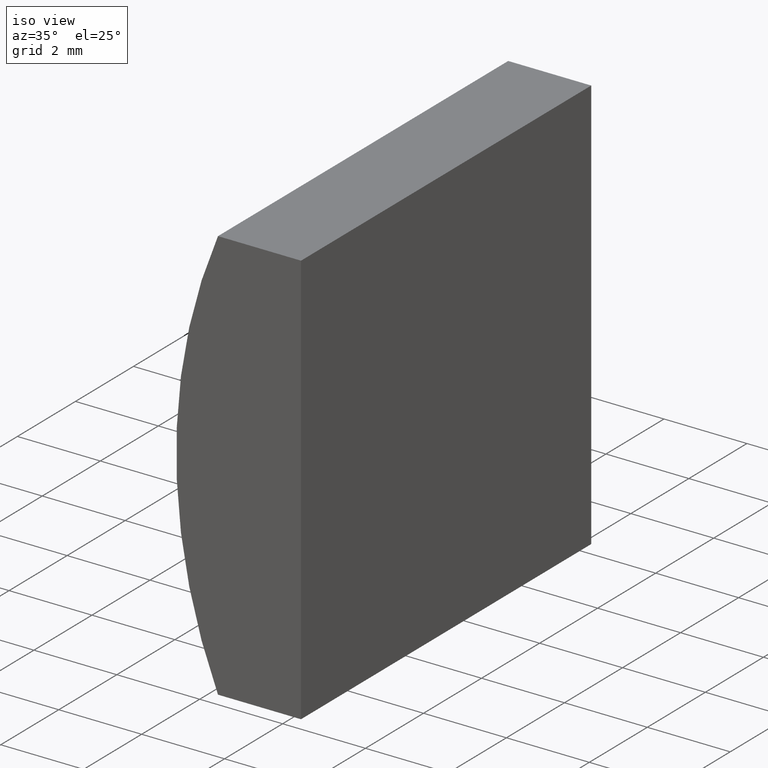
[diagram: clean part render]
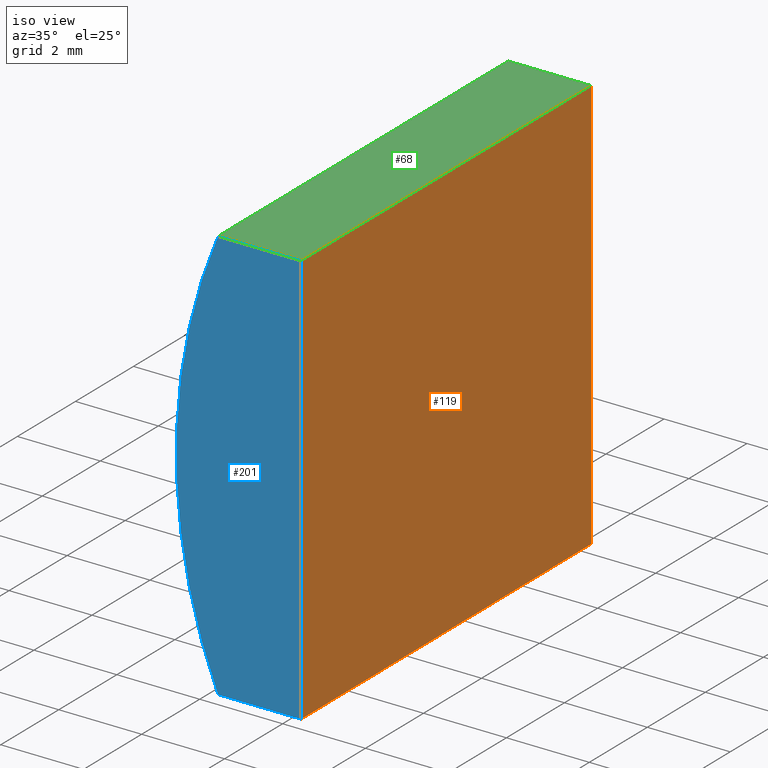
[diagram: same view with three faces highlighted in distinct colors, each labeled with its STEP entity id]
A machine part, iso view with three faces highlighted in distinct colors.
Their STEP definitions:

[orange] entity #119 — the highlighted planar face has unit normal (-1, 0, 0).
#5 = DIRECTION ( 'NONE',  ( 3.469446951953614200E-016, 0.0000000000000000000, 1.000000000000000000 ) ) ;
#6 = PLANE ( 'NONE',  #48 ) ;
#7 = VECTOR ( 'NONE', #132, 1000.000000000000000 ) ;
#13 = LINE ( 'NONE', #19, #125 ) ;
#19 = CARTESIAN_POINT ( 'NONE',  ( -5.554795665148737300, 10.00000000000000000, -5.000000000000000000 ) ) ;
#20 = CARTESIAN_POINT ( 'NONE',  ( -5.554795665148733800, 10.00000000000000000, 5.000000000000000000 ) ) ;
#30 = EDGE_CURVE ( 'NONE', #172, #111, #39, .T. ) ;
#33 = CARTESIAN_POINT ( 'NONE',  ( -5.554795665148733800, 10.00000000000000000, 5.000000000000000000 ) ) ;
#39 = LINE ( 'NONE', #126, #49 ) ;
#47 = CARTESIAN_POINT ( 'NONE',  ( -5.554795665148733800, 0.0000000000000000000, 5.000000000000000000 ) ) ;
#48 = AXIS2_PLACEMENT_3D ( 'NONE', #60, #110, #5 ) ;
#49 = VECTOR ( 'NONE', #175, 1000.000000000000000 ) ;
#60 = CARTESIAN_POINT ( 'NONE',  ( -5.554795665148737300, 10.00000000000000000, -5.000000000000000000 ) ) ;
#62 = VERTEX_POINT ( 'NONE', #20 ) ;
#63 = FACE_OUTER_BOUND ( 'NONE', #156, .T. ) ;
#66 = EDGE_CURVE ( 'NONE', #62, #172, #13, .T. ) ;
#70 = CARTESIAN_POINT ( 'NONE',  ( -5.554795665148737300, 0.0000000000000000000, -5.000000000000000000 ) ) ;
#74 = ORIENTED_EDGE ( 'NONE', *, *, #76, .T. ) ;
#75 = CARTESIAN_POINT ( 'NONE',  ( -5.554795665148737300, 0.0000000000000000000, -5.000000000000000000 ) ) ;
#76 = EDGE_CURVE ( 'NONE', #62, #108, #160, .T. ) ;
#82 = LINE ( 'NONE', #70, #86 ) ;
#86 = VECTOR ( 'NONE', #89, 1000.000000000000000 ) ;
#89 = DIRECTION ( 'NONE',  ( -3.469446951953614200E-016, -0.0000000000000000000, -1.000000000000000000 ) ) ;
#108 = VERTEX_POINT ( 'NONE', #47 ) ;
#110 = DIRECTION ( 'NONE',  ( -1.000000000000000000, 0.0000000000000000000, 3.469446951953614200E-016 ) ) ;
#111 = VERTEX_POINT ( 'NONE', #75 ) ;
#118 = ORIENTED_EDGE ( 'NONE', *, *, #153, .T. ) ;
#119 = ADVANCED_FACE ( 'NONE', ( #63 ), #6, .F. ) ;
#123 = ORIENTED_EDGE ( 'NONE', *, *, #30, .F. ) ;
#125 = VECTOR ( 'NONE', #131, 1000.000000000000000 ) ;
#126 = CARTESIAN_POINT ( 'NONE',  ( -5.554795665148737300, 10.00000000000000000, -5.000000000000000000 ) ) ;
#131 = DIRECTION ( 'NONE',  ( -3.469446951953614200E-016, -0.0000000000000000000, -1.000000000000000000 ) ) ;
#132 = DIRECTION ( 'NONE',  ( -0.0000000000000000000, -1.000000000000000000, -0.0000000000000000000 ) ) ;
#153 = EDGE_CURVE ( 'NONE', #108, #111, #82, .T. ) ;
#156 = EDGE_LOOP ( 'NONE', ( #118, #123, #168, #74 ) ) ;
#160 = LINE ( 'NONE', #33, #7 ) ;
#168 = ORIENTED_EDGE ( 'NONE', *, *, #66, .F. ) ;
#172 = VERTEX_POINT ( 'NONE', #177 ) ;
#175 = DIRECTION ( 'NONE',  ( -0.0000000000000000000, -1.000000000000000000, -0.0000000000000000000 ) ) ;
#177 = CARTESIAN_POINT ( 'NONE',  ( -5.554795665148737300, 10.00000000000000000, -5.000000000000000000 ) ) ;

[blue] entity #201 — the highlighted planar face has unit normal (0, 1, 0).
#1 = VECTOR ( 'NONE', #113, 1000.000000000000000 ) ;
#8 = CARTESIAN_POINT ( 'NONE',  ( -7.558082365299958900, 0.0000000000000000000, 5.000000000000000000 ) ) ;
#12 = DIRECTION ( 'NONE',  ( 0.0000000000000000000, 1.000000000000000000, 0.0000000000000000000 ) ) ;
#22 = CARTESIAN_POINT ( 'NONE',  ( -7.558082365299958900, 0.0000000000000000000, -5.000000000000000000 ) ) ;
#43 = VERTEX_POINT ( 'NONE', #8 ) ;
#47 = CARTESIAN_POINT ( 'NONE',  ( -5.554795665148733800, 0.0000000000000000000, 5.000000000000000000 ) ) ;
#53 = LINE ( 'NONE', #95, #186 ) ;
#64 = DIRECTION ( 'NONE',  ( -1.000000000000000000, -0.0000000000000000000, -0.0000000000000000000 ) ) ;
#65 = EDGE_CURVE ( 'NONE', #43, #108, #72, .T. ) ;
#70 = CARTESIAN_POINT ( 'NONE',  ( -5.554795665148737300, 0.0000000000000000000, -5.000000000000000000 ) ) ;
#72 = LINE ( 'NONE', #142, #1 ) ;
#75 = CARTESIAN_POINT ( 'NONE',  ( -5.554795665148737300, 0.0000000000000000000, -5.000000000000000000 ) ) ;
#78 = ORIENTED_EDGE ( 'NONE', *, *, #65, .F. ) ;
#79 = CIRCLE ( 'NONE', #149, 12.92000000000000300 ) ;
#82 = LINE ( 'NONE', #70, #86 ) ;
#83 = AXIS2_PLACEMENT_3D ( 'NONE', #92, #12, #182 ) ;
#84 = ORIENTED_EDGE ( 'NONE', *, *, #188, .F. ) ;
#86 = VECTOR ( 'NONE', #89, 1000.000000000000000 ) ;
#89 = DIRECTION ( 'NONE',  ( -3.469446951953614200E-016, -0.0000000000000000000, -1.000000000000000000 ) ) ;
#91 = FACE_OUTER_BOUND ( 'NONE', #197, .T. ) ;
#92 = CARTESIAN_POINT ( 'NONE',  ( 4.355204334851265500, 0.0000000000000000000, 4.286263797015675000E-017 ) ) ;
#95 = CARTESIAN_POINT ( 'NONE',  ( -7.558082365299958900, 0.0000000000000000000, -5.000000000000000000 ) ) ;
#96 = DIRECTION ( 'NONE',  ( 0.0000000000000000000, 0.0000000000000000000, 1.000000000000000000 ) ) ;
#101 = EDGE_CURVE ( 'NONE', #111, #157, #53, .T. ) ;
#107 = CARTESIAN_POINT ( 'NONE',  ( 4.355204334851265500, 0.0000000000000000000, 4.286263797015675000E-017 ) ) ;
#108 = VERTEX_POINT ( 'NONE', #47 ) ;
#111 = VERTEX_POINT ( 'NONE', #75 ) ;
#113 = DIRECTION ( 'NONE',  ( 1.000000000000000000, 0.0000000000000000000, 0.0000000000000000000 ) ) ;
#115 = DIRECTION ( 'NONE',  ( 0.0000000000000000000, 1.000000000000000000, 0.0000000000000000000 ) ) ;
#128 = PLANE ( 'NONE',  #83 ) ;
#142 = CARTESIAN_POINT ( 'NONE',  ( -7.558082365299958900, 0.0000000000000000000, 5.000000000000000000 ) ) ;
#149 = AXIS2_PLACEMENT_3D ( 'NONE', #107, #115, #96 ) ;
#152 = ORIENTED_EDGE ( 'NONE', *, *, #153, .F. ) ;
#153 = EDGE_CURVE ( 'NONE', #108, #111, #82, .T. ) ;
#157 = VERTEX_POINT ( 'NONE', #22 ) ;
#173 = ORIENTED_EDGE ( 'NONE', *, *, #101, .F. ) ;
#182 = DIRECTION ( 'NONE',  ( 0.0000000000000000000, -0.0000000000000000000, 1.000000000000000000 ) ) ;
#186 = VECTOR ( 'NONE', #64, 1000.000000000000000 ) ;
#188 = EDGE_CURVE ( 'NONE', #157, #43, #79, .T. ) ;
#197 = EDGE_LOOP ( 'NONE', ( #84, #173, #152, #78 ) ) ;
#201 = ADVANCED_FACE ( 'NONE', ( #91 ), #128, .F. ) ;

[green] entity #68 — the highlighted planar face has unit normal (0, 0, -1).
#1 = VECTOR ( 'NONE', #113, 1000.000000000000000 ) ;
#7 = VECTOR ( 'NONE', #132, 1000.000000000000000 ) ;
#8 = CARTESIAN_POINT ( 'NONE',  ( -7.558082365299958900, 0.0000000000000000000, 5.000000000000000000 ) ) ;
#20 = CARTESIAN_POINT ( 'NONE',  ( -5.554795665148733800, 10.00000000000000000, 5.000000000000000000 ) ) ;
#27 = EDGE_LOOP ( 'NONE', ( #31, #199, #45, #167 ) ) ;
#31 = ORIENTED_EDGE ( 'NONE', *, *, #65, .T. ) ;
#33 = CARTESIAN_POINT ( 'NONE',  ( -5.554795665148733800, 10.00000000000000000, 5.000000000000000000 ) ) ;
#42 = VERTEX_POINT ( 'NONE', #191 ) ;
#43 = VERTEX_POINT ( 'NONE', #8 ) ;
#45 = ORIENTED_EDGE ( 'NONE', *, *, #120, .F. ) ;
#46 = DIRECTION ( 'NONE',  ( -1.000000000000000000, 0.0000000000000000000, -0.0000000000000000000 ) ) ;
#47 = CARTESIAN_POINT ( 'NONE',  ( -5.554795665148733800, 0.0000000000000000000, 5.000000000000000000 ) ) ;
#54 = VECTOR ( 'NONE', #59, 1000.000000000000000 ) ;
#59 = DIRECTION ( 'NONE',  ( 1.000000000000000000, 0.0000000000000000000, 0.0000000000000000000 ) ) ;
#62 = VERTEX_POINT ( 'NONE', #20 ) ;
#65 = EDGE_CURVE ( 'NONE', #43, #108, #72, .T. ) ;
#68 = ADVANCED_FACE ( 'NONE', ( #138 ), #81, .F. ) ;
#72 = LINE ( 'NONE', #142, #1 ) ;
#76 = EDGE_CURVE ( 'NONE', #62, #108, #160, .T. ) ;
#77 = CARTESIAN_POINT ( 'NONE',  ( -7.558082365299958900, 10.00000000000000000, 5.000000000000000000 ) ) ;
#81 = PLANE ( 'NONE',  #93 ) ;
#93 = AXIS2_PLACEMENT_3D ( 'NONE', #77, #171, #46 ) ;
#108 = VERTEX_POINT ( 'NONE', #47 ) ;
#113 = DIRECTION ( 'NONE',  ( 1.000000000000000000, 0.0000000000000000000, 0.0000000000000000000 ) ) ;
#117 = LINE ( 'NONE', #155, #180 ) ;
#120 = EDGE_CURVE ( 'NONE', #42, #62, #161, .T. ) ;
#132 = DIRECTION ( 'NONE',  ( -0.0000000000000000000, -1.000000000000000000, -0.0000000000000000000 ) ) ;
#138 = FACE_OUTER_BOUND ( 'NONE', #27, .T. ) ;
#142 = CARTESIAN_POINT ( 'NONE',  ( -7.558082365299958900, 0.0000000000000000000, 5.000000000000000000 ) ) ;
#155 = CARTESIAN_POINT ( 'NONE',  ( -7.558082365299958900, 10.00000000000000000, 5.000000000000000000 ) ) ;
#159 = CARTESIAN_POINT ( 'NONE',  ( -7.558082365299958900, 10.00000000000000000, 5.000000000000000000 ) ) ;
#160 = LINE ( 'NONE', #33, #7 ) ;
#161 = LINE ( 'NONE', #159, #54 ) ;
#167 = ORIENTED_EDGE ( 'NONE', *, *, #195, .T. ) ;
#171 = DIRECTION ( 'NONE',  ( 0.0000000000000000000, 0.0000000000000000000, -1.000000000000000000 ) ) ;
#180 = VECTOR ( 'NONE', #198, 1000.000000000000000 ) ;
#191 = CARTESIAN_POINT ( 'NONE',  ( -7.558082365299958900, 10.00000000000000000, 5.000000000000000000 ) ) ;
#195 = EDGE_CURVE ( 'NONE', #42, #43, #117, .T. ) ;
#198 = DIRECTION ( 'NONE',  ( -0.0000000000000000000, -1.000000000000000000, -0.0000000000000000000 ) ) ;
#199 = ORIENTED_EDGE ( 'NONE', *, *, #76, .F. ) ;